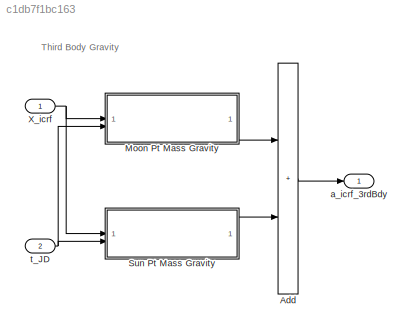
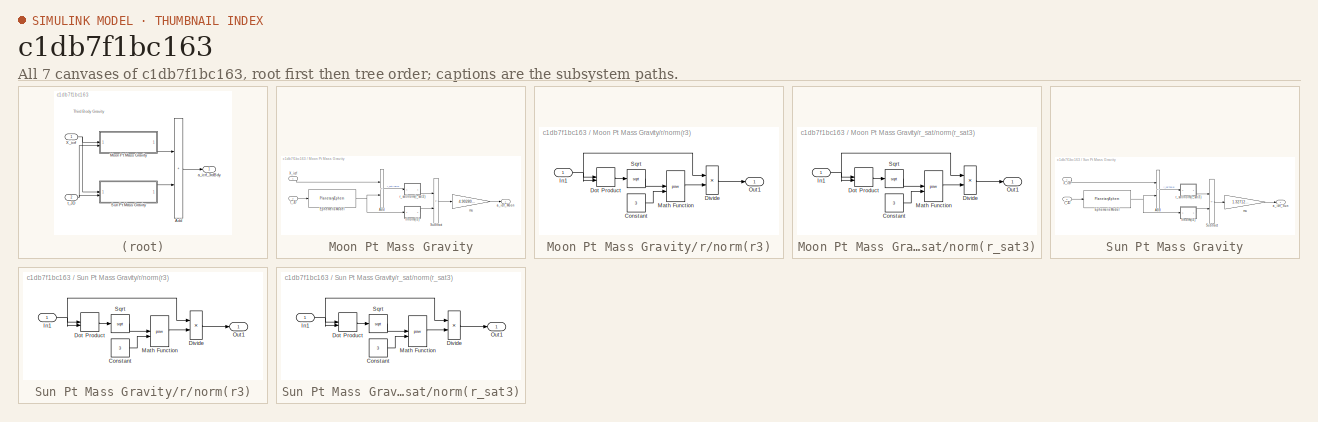
[diagram: thumbnail index - all 7 canvases of the model, root first then tree order]
MODEL slx_c1db7f1bc163
KIND model
CONFIG AbsTol = auto
CONFIG EnableMultiTasking = off
CONFIG FixedStep = 0.001
CONFIG MaxStep = auto
CONFIG MinStep = auto
CONFIG RelTol = 1e-3
CONFIG SampleTimeConstraint = Unconstrained
CONFIG SolverName = FixedStepAuto
CONFIG StartTime = 0.0
CONFIG StopTime = 1000.0
BLOCK [Sum] Add
  IconShape = rectangular
  Inputs = 2
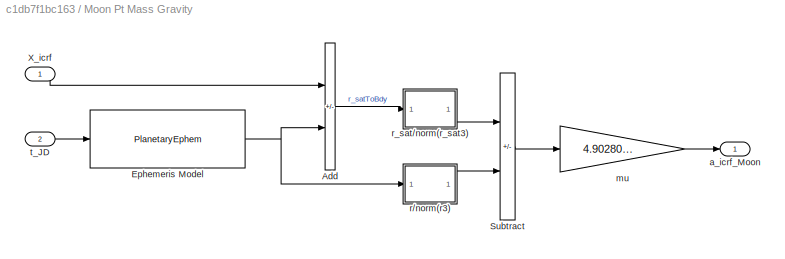
BLOCK [SubSystem] Moon Pt Mass Gravity
BLOCK [Sum] Moon Pt Mass Gravity/Add
  IconShape = rectangular
  Inputs = -+
BLOCK [PlanetaryEphem] Moon Pt Mass Gravity/Ephemeris Model
  AttributesFormatString = %<nCenter> to %<nTarget>\nJPL Model: %<de>
  outputVelocity = off
BLOCK [Sum] Moon Pt Mass Gravity/Subtract
  IconShape = rectangular
  Inputs = +-
BLOCK [Inport] Moon Pt Mass Gravity/X_icrf
BLOCK [Outport] Moon Pt Mass Gravity/a_icrf_Moon
BLOCK [Gain] Moon Pt Mass Gravity/mu
  Gain = 4.902801076e3
BLOCK [SubSystem] Moon Pt Mass Gravity/r//norm(r3)
BLOCK [Constant] Moon Pt Mass Gravity/r//norm(r3)/Constant
  Value = 3
BLOCK [Product] Moon Pt Mass Gravity/r//norm(r3)/Divide
  Inputs = */
BLOCK [DotProduct] Moon Pt Mass Gravity/r//norm(r3)/Dot Product
  OutDataTypeStr = Inherit: Inherit via internal rule
BLOCK [Inport] Moon Pt Mass Gravity/r//norm(r3)/In1
BLOCK [Math] Moon Pt Mass Gravity/r//norm(r3)/Math Function
  Operator = pow
BLOCK [Outport] Moon Pt Mass Gravity/r//norm(r3)/Out1
BLOCK [Sqrt] Moon Pt Mass Gravity/r//norm(r3)/Sqrt
BLOCK [SubSystem] Moon Pt Mass Gravity/r_sat//norm(r_sat3)
BLOCK [Constant] Moon Pt Mass Gravity/r_sat//norm(r_sat3)/Constant
  Value = 3
BLOCK [Product] Moon Pt Mass Gravity/r_sat//norm(r_sat3)/Divide
  Inputs = */
BLOCK [DotProduct] Moon Pt Mass Gravity/r_sat//norm(r_sat3)/Dot Product
  OutDataTypeStr = Inherit: Inherit via internal rule
BLOCK [Inport] Moon Pt Mass Gravity/r_sat//norm(r_sat3)/In1
BLOCK [Math] Moon Pt Mass Gravity/r_sat//norm(r_sat3)/Math Function
  Operator = pow
BLOCK [Outport] Moon Pt Mass Gravity/r_sat//norm(r_sat3)/Out1
BLOCK [Sqrt] Moon Pt Mass Gravity/r_sat//norm(r_sat3)/Sqrt
BLOCK [Inport] Moon Pt Mass Gravity/t_JD
  Port = 2
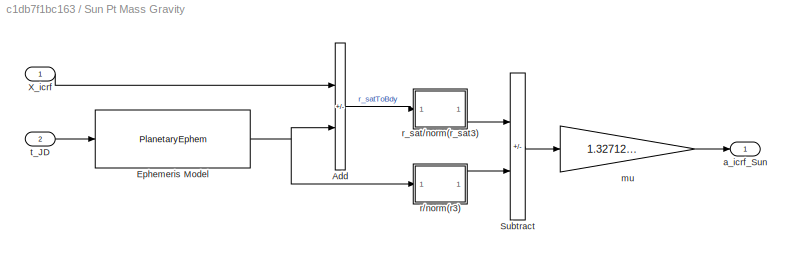
BLOCK [SubSystem] Sun Pt Mass Gravity
BLOCK [Sum] Sun Pt Mass Gravity/Add
  IconShape = rectangular
  Inputs = -+
BLOCK [PlanetaryEphem] Sun Pt Mass Gravity/Ephemeris Model
  AttributesFormatString = %<nCenter> to %<nTarget>\nJPL Model: %<de>
  outputVelocity = off
  target = Sun
BLOCK [Sum] Sun Pt Mass Gravity/Subtract
  IconShape = rectangular
  Inputs = +-
BLOCK [Inport] Sun Pt Mass Gravity/X_icrf
BLOCK [Outport] Sun Pt Mass Gravity/a_icrf_Sun
BLOCK [Gain] Sun Pt Mass Gravity/mu
  Gain = 1.32712440018e11
BLOCK [SubSystem] Sun Pt Mass Gravity/r//norm(r3)
BLOCK [Constant] Sun Pt Mass Gravity/r//norm(r3)/Constant
  Value = 3
BLOCK [Product] Sun Pt Mass Gravity/r//norm(r3)/Divide
  Inputs = */
BLOCK [DotProduct] Sun Pt Mass Gravity/r//norm(r3)/Dot Product
  OutDataTypeStr = Inherit: Inherit via internal rule
BLOCK [Inport] Sun Pt Mass Gravity/r//norm(r3)/In1
BLOCK [Math] Sun Pt Mass Gravity/r//norm(r3)/Math Function
  Operator = pow
BLOCK [Outport] Sun Pt Mass Gravity/r//norm(r3)/Out1
BLOCK [Sqrt] Sun Pt Mass Gravity/r//norm(r3)/Sqrt
BLOCK [SubSystem] Sun Pt Mass Gravity/r_sat//norm(r_sat3)
BLOCK [Constant] Sun Pt Mass Gravity/r_sat//norm(r_sat3)/Constant
  Value = 3
BLOCK [Product] Sun Pt Mass Gravity/r_sat//norm(r_sat3)/Divide
  Inputs = */
BLOCK [DotProduct] Sun Pt Mass Gravity/r_sat//norm(r_sat3)/Dot Product
  OutDataTypeStr = Inherit: Inherit via internal rule
BLOCK [Inport] Sun Pt Mass Gravity/r_sat//norm(r_sat3)/In1
BLOCK [Math] Sun Pt Mass Gravity/r_sat//norm(r_sat3)/Math Function
  Operator = pow
BLOCK [Outport] Sun Pt Mass Gravity/r_sat//norm(r_sat3)/Out1
BLOCK [Sqrt] Sun Pt Mass Gravity/r_sat//norm(r_sat3)/Sqrt
BLOCK [Inport] Sun Pt Mass Gravity/t_JD
  Port = 2
BLOCK [Inport] X_icrf
  PortDimensions = 3
BLOCK [Outport] a_icrf_3rdBdy
BLOCK [Inport] t_JD
  Port = 2
  PortDimensions = 1
ANNOTATION (root): Third Body Gravity
LINE Add:1 -> a_icrf_3rdBdy:1
LINE Moon Pt Mass Gravity/Add:1 -> Moon Pt Mass Gravity/r_sat//norm(r_sat3):1
NET Moon Pt Mass Gravity/Ephemeris Model:1 -> Moon Pt Mass Gravity/Add:2, Moon Pt Mass Gravity/r//norm(r3):1
LINE Moon Pt Mass Gravity/Subtract:1 -> Moon Pt Mass Gravity/mu:1
LINE Moon Pt Mass Gravity/X_icrf:1 -> Moon Pt Mass Gravity/Add:1
LINE Moon Pt Mass Gravity/mu:1 -> Moon Pt Mass Gravity/a_icrf_Moon:1
LINE Moon Pt Mass Gravity/r//norm(r3)/Constant:1 -> Moon Pt Mass Gravity/r//norm(r3)/Math Function:2
LINE Moon Pt Mass Gravity/r//norm(r3)/Divide:1 -> Moon Pt Mass Gravity/r//norm(r3)/Out1:1
LINE Moon Pt Mass Gravity/r//norm(r3)/Dot Product:1 -> Moon Pt Mass Gravity/r//norm(r3)/Sqrt:1
NET Moon Pt Mass Gravity/r//norm(r3)/In1:1 -> Moon Pt Mass Gravity/r//norm(r3)/Divide:1, Moon Pt Mass Gravity/r//norm(r3)/Dot Product:1, Moon Pt Mass Gravity/r//norm(r3)/Dot Product:2
LINE Moon Pt Mass Gravity/r//norm(r3)/Math Function:1 -> Moon Pt Mass Gravity/r//norm(r3)/Divide:2
LINE Moon Pt Mass Gravity/r//norm(r3)/Sqrt:1 -> Moon Pt Mass Gravity/r//norm(r3)/Math Function:1
LINE Moon Pt Mass Gravity/r//norm(r3):1 -> Moon Pt Mass Gravity/Subtract:2
LINE Moon Pt Mass Gravity/r_sat//norm(r_sat3)/Constant:1 -> Moon Pt Mass Gravity/r_sat//norm(r_sat3)/Math Function:2
LINE Moon Pt Mass Gravity/r_sat//norm(r_sat3)/Divide:1 -> Moon Pt Mass Gravity/r_sat//norm(r_sat3)/Out1:1
LINE Moon Pt Mass Gravity/r_sat//norm(r_sat3)/Dot Product:1 -> Moon Pt Mass Gravity/r_sat//norm(r_sat3)/Sqrt:1
NET Moon Pt Mass Gravity/r_sat//norm(r_sat3)/In1:1 -> Moon Pt Mass Gravity/r_sat//norm(r_sat3)/Divide:1, Moon Pt Mass Gravity/r_sat//norm(r_sat3)/Dot Product:1, Moon Pt Mass Gravity/r_sat//norm(r_sat3)/Dot Product:2
LINE Moon Pt Mass Gravity/r_sat//norm(r_sat3)/Math Function:1 -> Moon Pt Mass Gravity/r_sat//norm(r_sat3)/Divide:2
LINE Moon Pt Mass Gravity/r_sat//norm(r_sat3)/Sqrt:1 -> Moon Pt Mass Gravity/r_sat//norm(r_sat3)/Math Function:1
LINE Moon Pt Mass Gravity/r_sat//norm(r_sat3):1 -> Moon Pt Mass Gravity/Subtract:1
LINE Moon Pt Mass Gravity/t_JD:1 -> Moon Pt Mass Gravity/Ephemeris Model:1
LINE Moon Pt Mass Gravity:1 -> Add:1
LINE Sun Pt Mass Gravity/Add:1 -> Sun Pt Mass Gravity/r_sat//norm(r_sat3):1
NET Sun Pt Mass Gravity/Ephemeris Model:1 -> Sun Pt Mass Gravity/Add:2, Sun Pt Mass Gravity/r//norm(r3):1
LINE Sun Pt Mass Gravity/Subtract:1 -> Sun Pt Mass Gravity/mu:1
LINE Sun Pt Mass Gravity/X_icrf:1 -> Sun Pt Mass Gravity/Add:1
LINE Sun Pt Mass Gravity/mu:1 -> Sun Pt Mass Gravity/a_icrf_Sun:1
LINE Sun Pt Mass Gravity/r//norm(r3)/Constant:1 -> Sun Pt Mass Gravity/r//norm(r3)/Math Function:2
LINE Sun Pt Mass Gravity/r//norm(r3)/Divide:1 -> Sun Pt Mass Gravity/r//norm(r3)/Out1:1
LINE Sun Pt Mass Gravity/r//norm(r3)/Dot Product:1 -> Sun Pt Mass Gravity/r//norm(r3)/Sqrt:1
NET Sun Pt Mass Gravity/r//norm(r3)/In1:1 -> Sun Pt Mass Gravity/r//norm(r3)/Divide:1, Sun Pt Mass Gravity/r//norm(r3)/Dot Product:1, Sun Pt Mass Gravity/r//norm(r3)/Dot Product:2
LINE Sun Pt Mass Gravity/r//norm(r3)/Math Function:1 -> Sun Pt Mass Gravity/r//norm(r3)/Divide:2
LINE Sun Pt Mass Gravity/r//norm(r3)/Sqrt:1 -> Sun Pt Mass Gravity/r//norm(r3)/Math Function:1
LINE Sun Pt Mass Gravity/r//norm(r3):1 -> Sun Pt Mass Gravity/Subtract:2
LINE Sun Pt Mass Gravity/r_sat//norm(r_sat3)/Constant:1 -> Sun Pt Mass Gravity/r_sat//norm(r_sat3)/Math Function:2
LINE Sun Pt Mass Gravity/r_sat//norm(r_sat3)/Divide:1 -> Sun Pt Mass Gravity/r_sat//norm(r_sat3)/Out1:1
LINE Sun Pt Mass Gravity/r_sat//norm(r_sat3)/Dot Product:1 -> Sun Pt Mass Gravity/r_sat//norm(r_sat3)/Sqrt:1
NET Sun Pt Mass Gravity/r_sat//norm(r_sat3)/In1:1 -> Sun Pt Mass Gravity/r_sat//norm(r_sat3)/Divide:1, Sun Pt Mass Gravity/r_sat//norm(r_sat3)/Dot Product:1, Sun Pt Mass Gravity/r_sat//norm(r_sat3)/Dot Product:2
LINE Sun Pt Mass Gravity/r_sat//norm(r_sat3)/Math Function:1 -> Sun Pt Mass Gravity/r_sat//norm(r_sat3)/Divide:2
LINE Sun Pt Mass Gravity/r_sat//norm(r_sat3)/Sqrt:1 -> Sun Pt Mass Gravity/r_sat//norm(r_sat3)/Math Function:1
LINE Sun Pt Mass Gravity/r_sat//norm(r_sat3):1 -> Sun Pt Mass Gravity/Subtract:1
LINE Sun Pt Mass Gravity/t_JD:1 -> Sun Pt Mass Gravity/Ephemeris Model:1
LINE Sun Pt Mass Gravity:1 -> Add:2
NET X_icrf:1 -> Moon Pt Mass Gravity:1, Sun Pt Mass Gravity:1
NET t_JD:1 -> Moon Pt Mass Gravity:2, Sun Pt Mass Gravity:2
note: NET lines group one-source signal fan-out (src -> all destinations, sorted); 1:1 wires keep LINE
